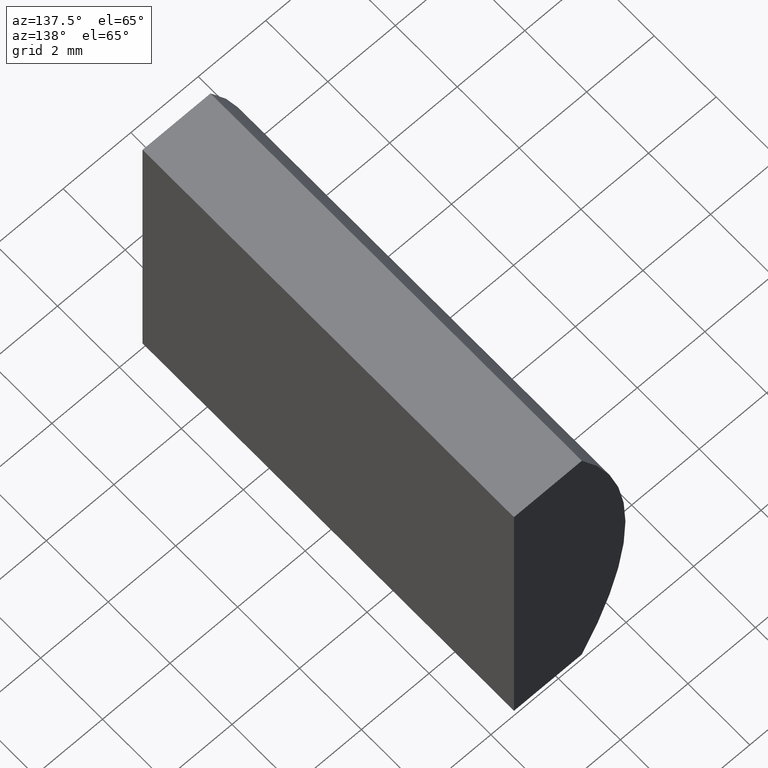
[diagram: clean part render]
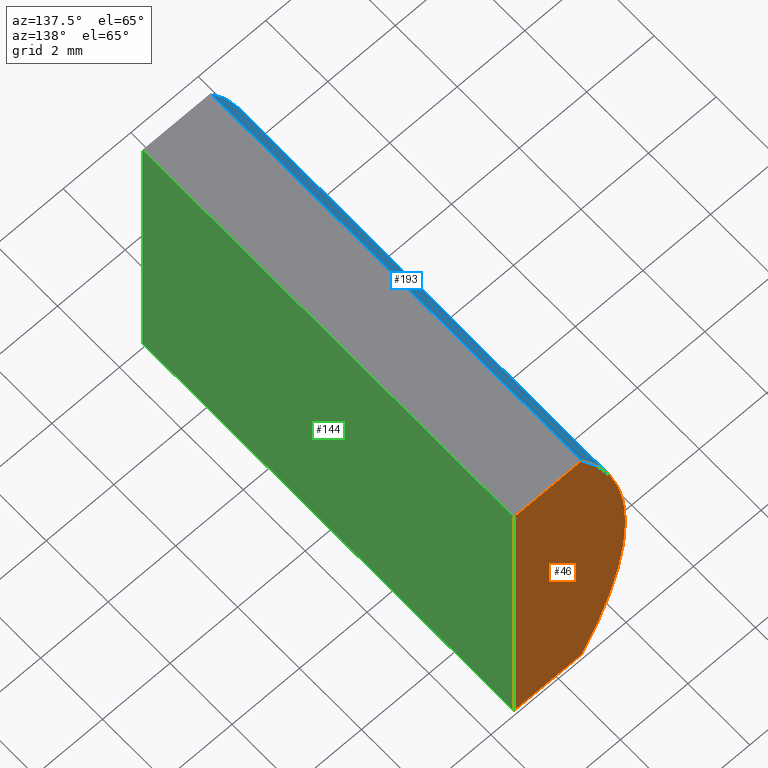
[diagram: same view with three faces highlighted in distinct colors, each labeled with its STEP entity id]
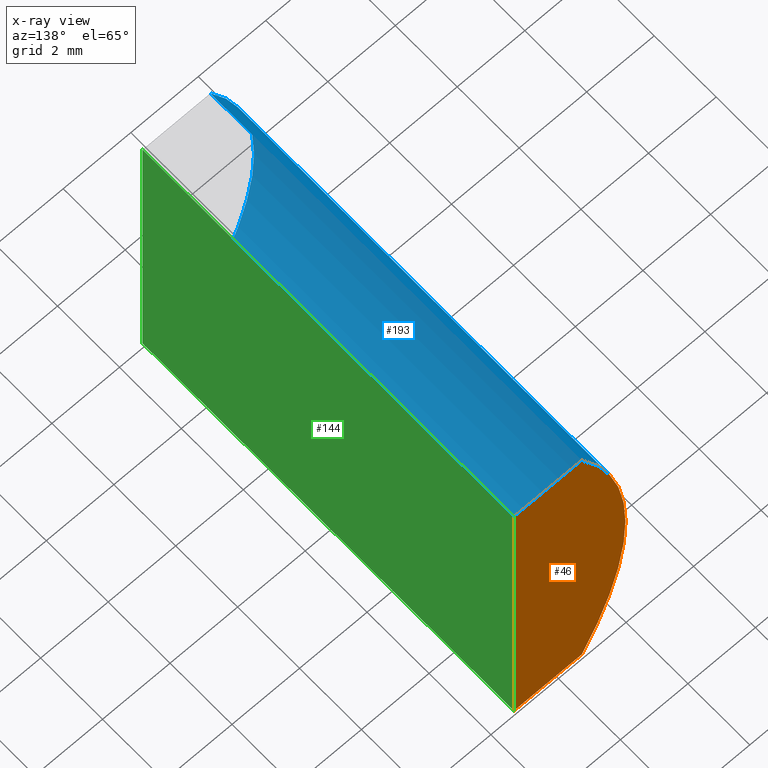
[diagram: x-ray of the same camera — body ghosted, the three highlighted faces saturated]
A machine part, auxiliary view with three faces highlighted in distinct colors.
The next image is the same camera in x-ray (body ghosted, the three faces saturated) — at least one of them is partly hidden behind the body in this view.
Their STEP definitions:

[orange] entity #46 — the highlighted planar face has unit normal (0, 1, 0).
#3 = VERTEX_POINT ( 'NONE', #68 ) ;
#8 = VERTEX_POINT ( 'NONE', #175 ) ;
#12 = DIRECTION ( 'NONE',  ( 0.0000000000000000000, 1.000000000000000000, 0.0000000000000000000 ) ) ;
#14 = ORIENTED_EDGE ( 'NONE', *, *, #35, .T. ) ;
#19 = DIRECTION ( 'NONE',  ( 0.0000000000000000000, 0.0000000000000000000, 1.000000000000000000 ) ) ;
#30 = CARTESIAN_POINT ( 'NONE',  ( -2.684795665148736800, 12.00000000000000000, -5.000000000000001800 ) ) ;
#33 = VERTEX_POINT ( 'NONE', #79 ) ;
#35 = EDGE_CURVE ( 'NONE', #33, #3, #58, .T. ) ;
#37 = LINE ( 'NONE', #173, #43 ) ;
#40 = DIRECTION ( 'NONE',  ( -1.000000000000000000, -0.0000000000000000000, 8.627358656228873800E-016 ) ) ;
#43 = VECTOR ( 'NONE', #40, 1000.000000000000000 ) ;
#44 = ORIENTED_EDGE ( 'NONE', *, *, #132, .T. ) ;
#46 = ADVANCED_FACE ( 'NONE', ( #168 ), #169, .T. ) ;
#56 = DIRECTION ( 'NONE',  ( 1.000000000000000000, 0.0000000000000000000, 0.0000000000000000000 ) ) ;
#58 = CIRCLE ( 'NONE', #123, 10.34000000000000000 ) ;
#66 = AXIS2_PLACEMENT_3D ( 'NONE', #160, #12, #70 ) ;
#68 = CARTESIAN_POINT ( 'NONE',  ( -4.695519393116569500, 12.00000000000000000, 5.000000000000000000 ) ) ;
#70 = DIRECTION ( 'NONE',  ( 0.0000000000000000000, -0.0000000000000000000, 1.000000000000000000 ) ) ;
#75 = EDGE_CURVE ( 'NONE', #3, #8, #136, .T. ) ;
#78 = LINE ( 'NONE', #30, #113 ) ;
#79 = CARTESIAN_POINT ( 'NONE',  ( -4.695519393116569500, 12.00000000000000000, -5.000000000000000000 ) ) ;
#85 = ORIENTED_EDGE ( 'NONE', *, *, #75, .T. ) ;
#113 = VECTOR ( 'NONE', #139, 1000.000000000000000 ) ;
#117 = DIRECTION ( 'NONE',  ( 0.0000000000000000000, 1.000000000000000000, 0.0000000000000000000 ) ) ;
#123 = AXIS2_PLACEMENT_3D ( 'NONE', #135, #117, #19 ) ;
#132 = EDGE_CURVE ( 'NONE', #146, #33, #37, .T. ) ;
#135 = CARTESIAN_POINT ( 'NONE',  ( 4.355204334851265500, 12.00000000000000000, 4.286263797015675000E-017 ) ) ;
#136 = LINE ( 'NONE', #143, #145 ) ;
#137 = EDGE_CURVE ( 'NONE', #8, #146, #78, .T. ) ;
#139 = DIRECTION ( 'NONE',  ( -3.035766082959411900E-016, -0.0000000000000000000, -1.000000000000000000 ) ) ;
#140 = ORIENTED_EDGE ( 'NONE', *, *, #137, .T. ) ;
#143 = CARTESIAN_POINT ( 'NONE',  ( -4.695519393116569500, 12.00000000000000000, 5.000000000000000000 ) ) ;
#145 = VECTOR ( 'NONE', #56, 1000.000000000000000 ) ;
#146 = VERTEX_POINT ( 'NONE', #194 ) ;
#160 = CARTESIAN_POINT ( 'NONE',  ( 4.355204334851265500, 12.00000000000000000, 4.286263797015675000E-017 ) ) ;
#168 = FACE_OUTER_BOUND ( 'NONE', #174, .T. ) ;
#169 = PLANE ( 'NONE',  #66 ) ;
#173 = CARTESIAN_POINT ( 'NONE',  ( -4.695519393116569500, 12.00000000000000000, -5.000000000000000000 ) ) ;
#174 = EDGE_LOOP ( 'NONE', ( #14, #85, #140, #44 ) ) ;
#175 = CARTESIAN_POINT ( 'NONE',  ( -2.684795665148733700, 12.00000000000000000, 5.000000000000000000 ) ) ;
#194 = CARTESIAN_POINT ( 'NONE',  ( -2.684795665148736800, 12.00000000000000000, -5.000000000000001800 ) ) ;

[blue] entity #193 — the highlighted cylindrical surface (partial cylindrical patch) has radius 10.34 mm, axis along (-0, -1, -0).
#2 = CARTESIAN_POINT ( 'NONE',  ( -4.695519393116569500, 0.0000000000000000000, -5.000000000000000000 ) ) ;
#3 = VERTEX_POINT ( 'NONE', #68 ) ;
#5 = DIRECTION ( 'NONE',  ( -0.0000000000000000000, -1.000000000000000000, -0.0000000000000000000 ) ) ;
#19 = DIRECTION ( 'NONE',  ( 0.0000000000000000000, 0.0000000000000000000, 1.000000000000000000 ) ) ;
#21 = ORIENTED_EDGE ( 'NONE', *, *, #148, .T. ) ;
#22 = VERTEX_POINT ( 'NONE', #2 ) ;
#33 = VERTEX_POINT ( 'NONE', #79 ) ;
#35 = EDGE_CURVE ( 'NONE', #33, #3, #58, .T. ) ;
#48 = EDGE_LOOP ( 'NONE', ( #21, #159, #88, #71 ) ) ;
#49 = CIRCLE ( 'NONE', #128, 10.34000000000000000 ) ;
#54 = DIRECTION ( 'NONE',  ( -0.0000000000000000000, -1.000000000000000000, -0.0000000000000000000 ) ) ;
#58 = CIRCLE ( 'NONE', #123, 10.34000000000000000 ) ;
#68 = CARTESIAN_POINT ( 'NONE',  ( -4.695519393116569500, 12.00000000000000000, 5.000000000000000000 ) ) ;
#71 = ORIENTED_EDGE ( 'NONE', *, *, #164, .T. ) ;
#74 = CARTESIAN_POINT ( 'NONE',  ( -4.695519393116569500, 0.0000000000000000000, 5.000000000000000000 ) ) ;
#77 = VECTOR ( 'NONE', #5, 1000.000000000000000 ) ;
#79 = CARTESIAN_POINT ( 'NONE',  ( -4.695519393116569500, 12.00000000000000000, -5.000000000000000000 ) ) ;
#88 = ORIENTED_EDGE ( 'NONE', *, *, #35, .F. ) ;
#99 = VERTEX_POINT ( 'NONE', #74 ) ;
#101 = DIRECTION ( 'NONE',  ( 0.0000000000000000000, 1.000000000000000000, 0.0000000000000000000 ) ) ;
#106 = CYLINDRICAL_SURFACE ( 'NONE', #171, 10.34000000000000000 ) ;
#115 = DIRECTION ( 'NONE',  ( 0.0000000000000000000, 0.0000000000000000000, -1.000000000000000000 ) ) ;
#117 = DIRECTION ( 'NONE',  ( 0.0000000000000000000, 1.000000000000000000, 0.0000000000000000000 ) ) ;
#123 = AXIS2_PLACEMENT_3D ( 'NONE', #135, #117, #19 ) ;
#125 = CARTESIAN_POINT ( 'NONE',  ( 4.355204334851265500, 0.0000000000000000000, 4.286263797015675000E-017 ) ) ;
#128 = AXIS2_PLACEMENT_3D ( 'NONE', #125, #101, #195 ) ;
#133 = CARTESIAN_POINT ( 'NONE',  ( -4.695519393116569500, 12.00000000000000000, 5.000000000000000000 ) ) ;
#135 = CARTESIAN_POINT ( 'NONE',  ( 4.355204334851265500, 12.00000000000000000, 4.286263797015675000E-017 ) ) ;
#148 = EDGE_CURVE ( 'NONE', #22, #99, #49, .T. ) ;
#156 = CARTESIAN_POINT ( 'NONE',  ( -4.695519393116569500, 12.00000000000000000, -5.000000000000000000 ) ) ;
#159 = ORIENTED_EDGE ( 'NONE', *, *, #172, .F. ) ;
#164 = EDGE_CURVE ( 'NONE', #33, #22, #199, .T. ) ;
#171 = AXIS2_PLACEMENT_3D ( 'NONE', #188, #203, #115 ) ;
#172 = EDGE_CURVE ( 'NONE', #3, #99, #177, .T. ) ;
#177 = LINE ( 'NONE', #133, #185 ) ;
#185 = VECTOR ( 'NONE', #54, 1000.000000000000000 ) ;
#188 = CARTESIAN_POINT ( 'NONE',  ( 4.355204334851265500, 12.00000000000000000, 4.286263797015675000E-017 ) ) ;
#191 = FACE_OUTER_BOUND ( 'NONE', #48, .T. ) ;
#193 = ADVANCED_FACE ( 'NONE', ( #191 ), #106, .T. ) ;
#195 = DIRECTION ( 'NONE',  ( 0.0000000000000000000, 0.0000000000000000000, 1.000000000000000000 ) ) ;
#199 = LINE ( 'NONE', #156, #77 ) ;
#203 = DIRECTION ( 'NONE',  ( -0.0000000000000000000, -1.000000000000000000, -0.0000000000000000000 ) ) ;

[green] entity #144 — the highlighted planar face has unit normal (-1, 0, 0).
#8 = VERTEX_POINT ( 'NONE', #175 ) ;
#10 = LINE ( 'NONE', #80, #182 ) ;
#18 = FACE_OUTER_BOUND ( 'NONE', #60, .T. ) ;
#20 = DIRECTION ( 'NONE',  ( -0.0000000000000000000, -1.000000000000000000, -0.0000000000000000000 ) ) ;
#29 = ORIENTED_EDGE ( 'NONE', *, *, #187, .T. ) ;
#30 = CARTESIAN_POINT ( 'NONE',  ( -2.684795665148736800, 12.00000000000000000, -5.000000000000001800 ) ) ;
#32 = DIRECTION ( 'NONE',  ( 3.035766082959411900E-016, 0.0000000000000000000, 1.000000000000000000 ) ) ;
#34 = VECTOR ( 'NONE', #186, 1000.000000000000000 ) ;
#42 = EDGE_CURVE ( 'NONE', #8, #111, #183, .T. ) ;
#52 = LINE ( 'NONE', #170, #34 ) ;
#53 = DIRECTION ( 'NONE',  ( -1.000000000000000000, 0.0000000000000000000, 3.035766082959411900E-016 ) ) ;
#60 = EDGE_LOOP ( 'NONE', ( #29, #141, #163, #103 ) ) ;
#61 = EDGE_CURVE ( 'NONE', #146, #119, #10, .T. ) ;
#64 = CARTESIAN_POINT ( 'NONE',  ( -2.684795665148733700, 12.00000000000000000, 5.000000000000000000 ) ) ;
#78 = LINE ( 'NONE', #30, #113 ) ;
#80 = CARTESIAN_POINT ( 'NONE',  ( -2.684795665148736800, 12.00000000000000000, -5.000000000000001800 ) ) ;
#103 = ORIENTED_EDGE ( 'NONE', *, *, #42, .T. ) ;
#105 = CARTESIAN_POINT ( 'NONE',  ( -2.684795665148733700, 0.0000000000000000000, 5.000000000000000000 ) ) ;
#111 = VERTEX_POINT ( 'NONE', #105 ) ;
#113 = VECTOR ( 'NONE', #139, 1000.000000000000000 ) ;
#119 = VERTEX_POINT ( 'NONE', #130 ) ;
#120 = CARTESIAN_POINT ( 'NONE',  ( -2.684795665148736800, 12.00000000000000000, -5.000000000000001800 ) ) ;
#122 = VECTOR ( 'NONE', #20, 1000.000000000000000 ) ;
#130 = CARTESIAN_POINT ( 'NONE',  ( -2.684795665148736800, 0.0000000000000000000, -5.000000000000001800 ) ) ;
#137 = EDGE_CURVE ( 'NONE', #8, #146, #78, .T. ) ;
#139 = DIRECTION ( 'NONE',  ( -3.035766082959411900E-016, -0.0000000000000000000, -1.000000000000000000 ) ) ;
#141 = ORIENTED_EDGE ( 'NONE', *, *, #61, .F. ) ;
#144 = ADVANCED_FACE ( 'NONE', ( #18 ), #201, .F. ) ;
#146 = VERTEX_POINT ( 'NONE', #194 ) ;
#154 = DIRECTION ( 'NONE',  ( -0.0000000000000000000, -1.000000000000000000, -0.0000000000000000000 ) ) ;
#163 = ORIENTED_EDGE ( 'NONE', *, *, #137, .F. ) ;
#170 = CARTESIAN_POINT ( 'NONE',  ( -2.684795665148736800, 0.0000000000000000000, -5.000000000000001800 ) ) ;
#175 = CARTESIAN_POINT ( 'NONE',  ( -2.684795665148733700, 12.00000000000000000, 5.000000000000000000 ) ) ;
#182 = VECTOR ( 'NONE', #154, 1000.000000000000000 ) ;
#183 = LINE ( 'NONE', #64, #122 ) ;
#186 = DIRECTION ( 'NONE',  ( -3.035766082959411900E-016, -0.0000000000000000000, -1.000000000000000000 ) ) ;
#187 = EDGE_CURVE ( 'NONE', #111, #119, #52, .T. ) ;
#194 = CARTESIAN_POINT ( 'NONE',  ( -2.684795665148736800, 12.00000000000000000, -5.000000000000001800 ) ) ;
#201 = PLANE ( 'NONE',  #202 ) ;
#202 = AXIS2_PLACEMENT_3D ( 'NONE', #120, #53, #32 ) ;